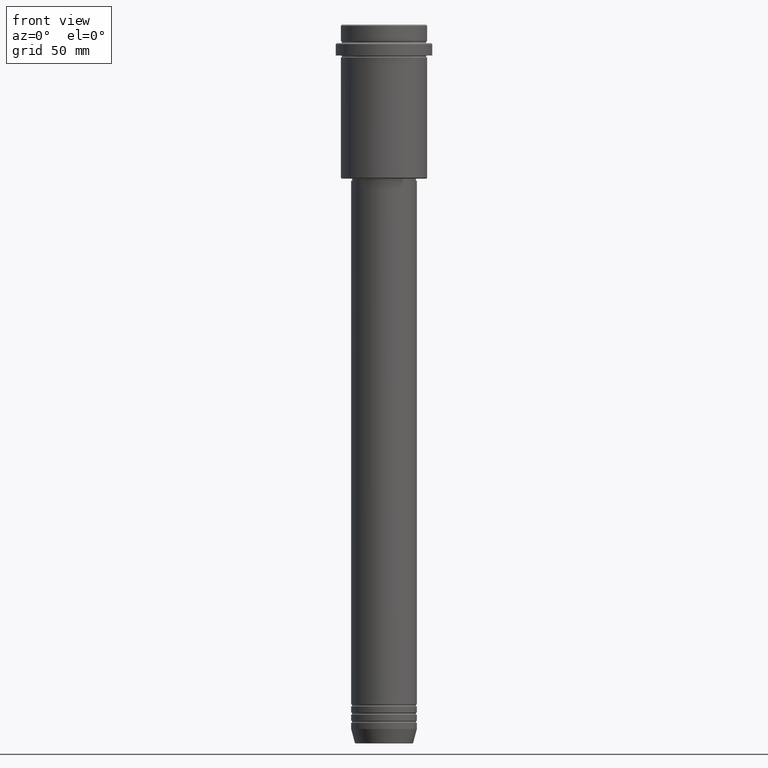
[diagram: clean part render]
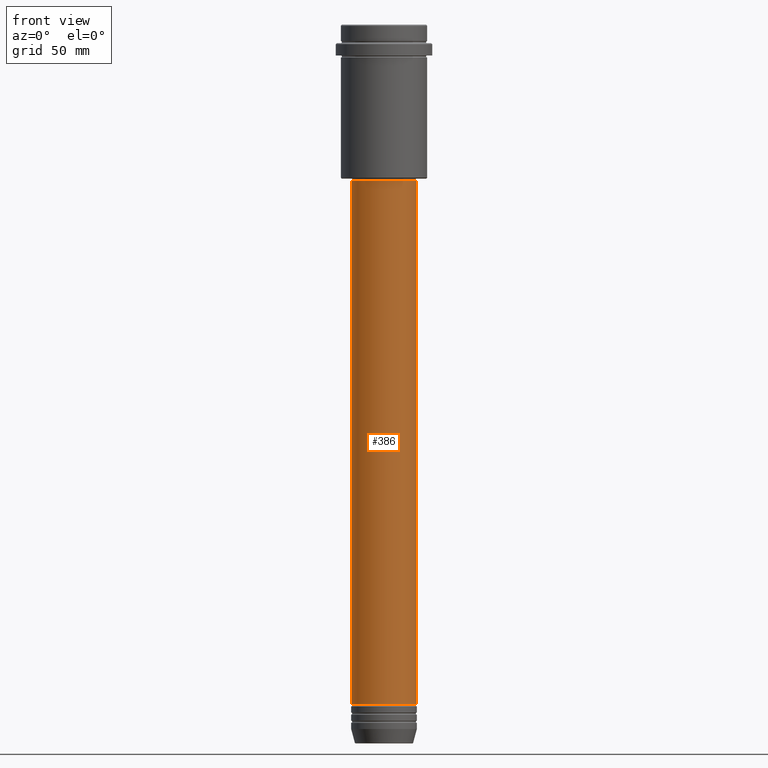
[diagram: same view with one face highlighted and labeled with its STEP entity id]
A machine part, front view. The second image highlights one B-rep face of the part: STEP entity #386.
In plain terms, the highlighted cylindrical surface (edge-blend (fillet) strip) has radius 16 mm, axis along (-0, -0, 1).
Its self-contained STEP definition (entity closure, byte-faithful):
#23 = VERTEX_POINT ( 'NONE', #298 ) ;
#93 = EDGE_CURVE ( 'NONE', #786, #252, #1193, .T. ) ;
#103 = CARTESIAN_POINT ( 'NONE',  ( -16.00000000000000355, 1.959434878635765526E-15, -75.99999999999992895 ) ) ;
#104 = EDGE_CURVE ( 'NONE', #23, #392, #967, .T. ) ;
#109 = VECTOR ( 'NONE', #332, 1000.000000000000000 ) ;
#115 = LINE ( 'NONE', #329, #383 ) ;
#189 = CARTESIAN_POINT ( 'NONE',  ( 0.000000000000000000, 0.000000000000000000, -75.99999999999992895 ) ) ;
#216 = ORIENTED_EDGE ( 'NONE', *, *, #93, .F. ) ;
#239 = DIRECTION ( 'NONE',  ( 1.000000000000000000, 0.000000000000000000, 0.000000000000000000 ) ) ;
#252 = VERTEX_POINT ( 'NONE', #1067 ) ;
#298 = CARTESIAN_POINT ( 'NONE',  ( -16.00000000000000000, 1.959434878635765131E-15, -330.9999999999998863 ) ) ;
#329 = CARTESIAN_POINT ( 'NONE',  ( 16.00000000000000000, 0.000000000000000000, 0.000000000000000000 ) ) ;
#332 = DIRECTION ( 'NONE',  ( -0.000000000000000000, -0.000000000000000000, 1.000000000000000000 ) ) ;
#334 = DIRECTION ( 'NONE',  ( -0.000000000000000000, -0.000000000000000000, 1.000000000000000000 ) ) ;
#383 = VECTOR ( 'NONE', #334, 1000.000000000000000 ) ;
#386 = ADVANCED_FACE ( 'NONE', ( #1340 ), #805, .T. ) ;
#392 = VERTEX_POINT ( 'NONE', #695 ) ;
#418 = CARTESIAN_POINT ( 'NONE',  ( -16.00000000000000000, 1.959434878635765131E-15, 0.000000000000000000 ) ) ;
#510 = DIRECTION ( 'NONE',  ( 1.000000000000000000, 0.000000000000000000, 0.000000000000000000 ) ) ;
#518 = CARTESIAN_POINT ( 'NONE',  ( 0.000000000000000000, 0.000000000000000000, -330.9999999999998863 ) ) ;
#548 = ORIENTED_EDGE ( 'NONE', *, *, #775, .T. ) ;
#574 = AXIS2_PLACEMENT_3D ( 'NONE', #518, #958, #1287 ) ;
#695 = CARTESIAN_POINT ( 'NONE',  ( 16.00000000000000000, 0.000000000000000000, -330.9999999999998863 ) ) ;
#713 = ORIENTED_EDGE ( 'NONE', *, *, #1184, .F. ) ;
#775 = EDGE_CURVE ( 'NONE', #392, #252, #115, .T. ) ;
#786 = VERTEX_POINT ( 'NONE', #103 ) ;
#805 = CYLINDRICAL_SURFACE ( 'NONE', #833, 16.00000000000000000 ) ;
#833 = AXIS2_PLACEMENT_3D ( 'NONE', #1312, #1234, #239 ) ;
#880 = AXIS2_PLACEMENT_3D ( 'NONE', #189, #1293, #510 ) ;
#958 = DIRECTION ( 'NONE',  ( -0.000000000000000000, -0.000000000000000000, 1.000000000000000000 ) ) ;
#967 = CIRCLE ( 'NONE', #574, 16.00000000000000000 ) ;
#1067 = CARTESIAN_POINT ( 'NONE',  ( 16.00000000000000355, 0.000000000000000000, -75.99999999999992895 ) ) ;
#1091 = EDGE_LOOP ( 'NONE', ( #713, #1156, #548, #216 ) ) ;
#1156 = ORIENTED_EDGE ( 'NONE', *, *, #104, .T. ) ;
#1184 = EDGE_CURVE ( 'NONE', #23, #786, #1398, .T. ) ;
#1193 = CIRCLE ( 'NONE', #880, 16.00000000000000355 ) ;
#1234 = DIRECTION ( 'NONE',  ( -0.000000000000000000, -0.000000000000000000, 1.000000000000000000 ) ) ;
#1287 = DIRECTION ( 'NONE',  ( 1.000000000000000000, 0.000000000000000000, 0.000000000000000000 ) ) ;
#1293 = DIRECTION ( 'NONE',  ( -0.000000000000000000, -0.000000000000000000, 1.000000000000000000 ) ) ;
#1312 = CARTESIAN_POINT ( 'NONE',  ( 0.000000000000000000, 0.000000000000000000, 0.000000000000000000 ) ) ;
#1340 = FACE_OUTER_BOUND ( 'NONE', #1091, .T. ) ;
#1398 = LINE ( 'NONE', #418, #109 ) ;